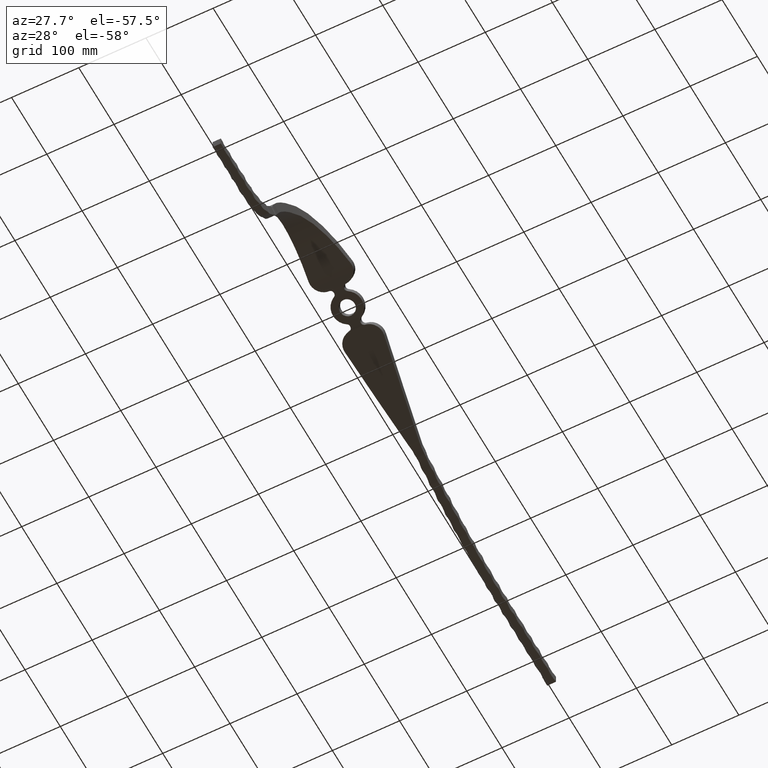
[diagram: clean part render]
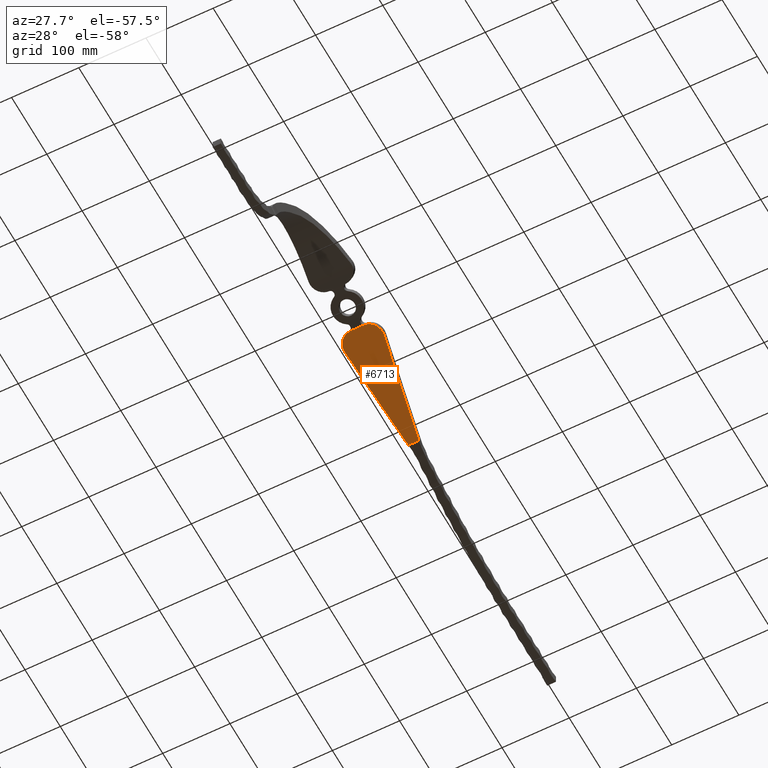
[diagram: same view with one face highlighted and labeled with its STEP entity id]
A machine part, auxiliary view. The second image highlights one B-rep face of the part: STEP entity #6713.
In plain terms, the highlighted face is a freeform B-spline surface patch.
Its self-contained STEP definition (entity closure, byte-faithful):
#177 = CARTESIAN_POINT ( 'NONE',  ( 32.49999999999999289, 398.2055284812243485, 98.91902307029602071 ) ) ;
#285 = VECTOR ( 'NONE', #12149, 1000.000000000000000 ) ;
#685 = CARTESIAN_POINT ( 'NONE',  ( 29.39842534981447031, 418.2966371080675003, 91.15992445113538167 ) ) ;
#833 = CARTESIAN_POINT ( 'NONE',  ( 21.56884418445620000, 402.0451591945417817, 97.43433253194005772 ) ) ;
#919 = CARTESIAN_POINT ( 'NONE',  ( 29.27533773561357222, 414.6042808549437382, 92.58321403811318362 ) ) ;
#983 = CARTESIAN_POINT ( 'NONE',  ( -26.08983782934221551, 406.5483346044427435, 95.69362923505715912 ) ) ;
#1789 = CARTESIAN_POINT ( 'NONE',  ( 6.499999999999996447, 568.0099615575538792, 37.66490534661281941 ) ) ;
#1950 = CARTESIAN_POINT ( 'NONE',  ( -32.50000000000000711, 398.2055284812243485, 98.91902307029602071 ) ) ;
#2468 = CARTESIAN_POINT ( 'NONE',  ( 29.45445679490124036, 417.0634536324353689, 91.63505440368849975 ) ) ;
#2619 = CARTESIAN_POINT ( 'NONE',  ( 28.93355376826901804, 412.7638882315812907, 93.29323224932920766 ) ) ;
#2663 = CARTESIAN_POINT ( 'NONE',  ( -7.891718761283561534, 558.8471700023734456, 40.73713867572663361 ) ) ;
#2976 = EDGE_LOOP ( 'NONE', ( #15078, #15892, #13282, #18932, #17515, #6330 ) ) ;
#3592 = CARTESIAN_POINT ( 'NONE',  ( 10.31337739668422593, 542.9026990181400834, 46.08076605695493555 ) ) ;
#3596 = LINE ( 'NONE', #14030, #285 ) ;
#4204 = CARTESIAN_POINT ( 'NONE',  ( 19.93934532058278108, 400.9877083774539983, 97.84319785511971190 ) ) ;
#4283 = CARTESIAN_POINT ( 'NONE',  ( 22.34838942786321780, 402.6312688367664805, 97.20772507863826206 ) ) ;
#4584 = CARTESIAN_POINT ( 'NONE',  ( -29.12372490940314407, 413.6964256004280287, 92.93342824950056524 ) ) ;
#4741 = CARTESIAN_POINT ( 'NONE',  ( -28.43479664211077562, 410.9733946164853364, 93.98429643560562852 ) ) ;
#5470 = CARTESIAN_POINT ( 'NONE',  ( -23.83320587916667321, 454.3373769139098499, 77.21319558653176784 ) ) ;
#5909 = CARTESIAN_POINT ( 'NONE',  ( 20.49506677604565752, 401.3203305310328233, 97.71458512468309721 ) ) ;
#6054 = CARTESIAN_POINT ( 'NONE',  ( 16.99461997797360269, 399.5873743733277479, 98.38467500652322428 ) ) ;
#6060 = CARTESIAN_POINT ( 'NONE',  ( -15.63067998978774575, 507.9176416998598711, 57.88500858344931288 ) ) ;
#6126 = CARTESIAN_POINT ( 'NONE',  ( 27.09725881263040748, 408.1469586631700395, 95.07595983321425592 ) ) ;
#6191 = CARTESIAN_POINT ( 'NONE',  ( -26.79096584835121675, 407.6104723255335784, 95.28322071068616594 ) ) ;
#6263 = CARTESIAN_POINT ( 'NONE',  ( -20.50217812889810176, 401.3246761432055223, 97.71290484822526423 ) ) ;
#6312 = EDGE_CURVE ( 'NONE', #8729, #12713, #14352, .T. ) ;
#6315 = CARTESIAN_POINT ( 'NONE',  ( 7.891718761283565975, 558.8471700023733320, 40.73713867572664782 ) ) ;
#6330 = ORIENTED_EDGE ( 'NONE', *, *, #13115, .F. ) ;
#6344 = CARTESIAN_POINT ( 'NONE',  ( -14.48277634946172654, 398.7721352429575177, 98.69991959481244237 ) ) ;
#6420 = CARTESIAN_POINT ( 'NONE',  ( -28.92939772842571600, 412.7816145809468367, 93.28640556615503954 ) ) ;
#6713 = ADVANCED_FACE ( 'NONE', ( #13249 ), #23262, .T. ) ;
#7288 = B_SPLINE_CURVE_WITH_KNOTS ( 'NONE', 3,
 ( #16649, #18388, #6060, #15081, #22012, #22088 ),
 .UNSPECIFIED., .F., .F.,
 ( 4, 1, 1, 4 ),
 ( 0.05352686660307579003, 0.4399986132098092639, 0.5600013864694951549, 0.8733713709599107977 ),
 .UNSPECIFIED. ) ;
#7913 = CARTESIAN_POINT ( 'NONE',  ( 29.20761037884696165, 419.5331693987598101, 90.68387095057711633 ) ) ;
#7974 = CARTESIAN_POINT ( 'NONE',  ( -29.06457868797799549, 413.3912785144970030, 93.05115806425040148 ) ) ;
#8138 = CARTESIAN_POINT ( 'NONE',  ( -22.10934486025479728, 402.4351248500546490, 97.28355683353093752 ) ) ;
#8217 = CARTESIAN_POINT ( 'NONE',  ( 7.891718761283565975, 558.8471700023733320, 40.73713867572664782 ) ) ;
#8221 = CARTESIAN_POINT ( 'NONE',  ( -17.00526975098604510, 399.5915031162260220, 98.38307847779570636 ) ) ;
#8729 = VERTEX_POINT ( 'NONE', #8217 ) ;
#9246 = B_SPLINE_CURVE_WITH_KNOTS ( 'NONE', 3,
 ( #7913, #685, #2468, #18452, #919, #20352, #2619, #18605, #18689, #15155, #6126, #20265, #22083, #15006, #13124, #14846, #11531, #4283, #14928, #833, #18757, #5909, #4204, #20493, #13277, #6054, #20419, #9640, #9559, #22228 ),
 .UNSPECIFIED., .F., .F.,
 ( 4, 2, 2, 2, 2, 2, 2, 2, 2, 2, 2, 2, 2, 2, 4 ),
 ( 0.000000000000000000, 0.003959031758025944106, 0.005938547637038922231, 0.007918063516051902090, 0.01187709527407785834, 0.01286685321358445495, 0.01385661115309104983, 0.01583612703210410602, 0.01979515879013008309, 0.02078491672963658776, 0.02177467466914308550, 0.02375419054815599423, 0.02573370642716890297, 0.02771322230618181170, 0.03167225406420762918 ),
 .UNSPECIFIED. ) ;
#9546 = CARTESIAN_POINT ( 'NONE',  ( -11.88259121125724249, 398.3483567640017213, 98.86379228869786573 ) ) ;
#9559 = CARTESIAN_POINT ( 'NONE',  ( 13.19130097400653590, 398.5003162210454093, 98.80503054827420328 ) ) ;
#9640 = CARTESIAN_POINT ( 'NONE',  ( 14.47658269986813906, 398.7710083030967780, 98.70035538160064448 ) ) ;
#9931 = CARTESIAN_POINT ( 'NONE',  ( -29.34510225823500562, 415.2249399242810455, 92.34385613567762618 ) ) ;
#9978 = CARTESIAN_POINT ( 'NONE',  ( 26.49170503800791465, 437.1329658685171466, 83.90811201439022682 ) ) ;
#10089 = CARTESIAN_POINT ( 'NONE',  ( -23.60785301854856755, 403.6630025452207633, 96.80884337217911195 ) ) ;
#10130 = CARTESIAN_POINT ( 'NONE',  ( 15.63067998978774931, 507.9176416998598711, 57.88500858344931288 ) ) ;
#10215 = CARTESIAN_POINT ( 'NONE',  ( 22.73579003989179625, 461.5058798898992336, 74.62727768176603149 ) ) ;
#10310 = CARTESIAN_POINT ( 'NONE',  ( 11.88259121125725670, 398.3483567640017213, 98.86379228869786573 ) ) ;
#10774 = CARTESIAN_POINT ( 'NONE',  ( -6.500000000000000000, 568.0099615575538792, 37.66490534661281941 ) ) ;
#11347 = CARTESIAN_POINT ( 'NONE',  ( 7.891718761283565975, 558.8471700023733320, 40.73713867572664782 ) ) ;
#11366 = CARTESIAN_POINT ( 'NONE',  ( -13.19357904856109265, 398.5005807372755839, 98.80492826155681030 ) ) ;
#11531 = CARTESIAN_POINT ( 'NONE',  ( 23.60247371925472848, 403.6575368899456748, 96.81095624143486589 ) ) ;
#11560 = EDGE_CURVE ( 'NONE', #12322, #22027, #9246, .T. ) ;
#11682 = CARTESIAN_POINT ( 'NONE',  ( -25.71223129148085462, 406.0360309347760221, 95.89161065220696401 ) ) ;
#11761 = CARTESIAN_POINT ( 'NONE',  ( -29.20761037884699363, 419.5331693987596395, 90.68387095057714475 ) ) ;
#11807 = CARTESIAN_POINT ( 'NONE',  ( -11.88259121125724249, 398.3483567640017213, 98.86379228869786573 ) ) ;
#11810 = CARTESIAN_POINT ( 'NONE',  ( 11.24118810654761269, 536.7962948915039760, 48.13500635904080838 ) ) ;
#11837 = CARTESIAN_POINT ( 'NONE',  ( -18.80128734857670736, 400.3780375966611018, 98.07893963265303228 ) ) ;
#11924 = CARTESIAN_POINT ( 'NONE',  ( -19.94574764309540882, 400.9914019890550776, 97.84176966368903550 ) ) ;
#12149 = DIRECTION ( 'NONE',  ( 1.000000000000000000, -0.000000000000000000, -0.000000000000000000 ) ) ;
#12322 = VERTEX_POINT ( 'NONE', #15992 ) ;
#12332 = EDGE_CURVE ( 'NONE', #13900, #22027, #3596, .T. ) ;
#12663 = EDGE_CURVE ( 'NONE', #8729, #12322, #12707, .T. ) ;
#12671 = CARTESIAN_POINT ( 'NONE',  ( 15.16679412383265912, 510.9478214107848544, 56.79192178479907938 ) ) ;
#12707 = B_SPLINE_CURVE_WITH_KNOTS ( 'NONE', 3,
 ( #6315, #11810, #10130, #10215, #9978, #19021 ),
 .UNSPECIFIED., .F., .F.,
 ( 4, 1, 1, 4 ),
 ( 0.05352686660307591493, 0.4399986132098092084, 0.5600013864694951549, 0.8733713709599096875 ),
 .UNSPECIFIED. ) ;
#12713 = VERTEX_POINT ( 'NONE', #22578 ) ;
#13115 = EDGE_CURVE ( 'NONE', #12713, #16101, #7288, .T. ) ;
#13124 = CARTESIAN_POINT ( 'NONE',  ( 25.70620652994326960, 406.0282035704236705, 95.89463568307303376 ) ) ;
#13249 = FACE_OUTER_BOUND ( 'NONE', #2976, .T. ) ;
#13277 = CARTESIAN_POINT ( 'NONE',  ( 18.20597848382261930, 400.0945659271669115, 98.18855235337194642 ) ) ;
#13282 = ORIENTED_EDGE ( 'NONE', *, *, #11560, .T. ) ;
#13334 = CARTESIAN_POINT ( 'NONE',  ( -27.11021137979464157, 408.1535681194464473, 95.07339726681945535 ) ) ;
#13493 = CARTESIAN_POINT ( 'NONE',  ( -27.97710778497611983, 409.8177505615064433, 94.43055625076434012 ) ) ;
#13900 = VERTEX_POINT ( 'NONE', #11807 ) ;
#14030 = CARTESIAN_POINT ( 'NONE',  ( -33.03490780949557148, 398.3483567640017213, 98.86379228869786573 ) ) ;
#14352 = B_SPLINE_CURVE_WITH_KNOTS ( 'NONE', 1,
 ( #11347, #2663 ),
 .UNSPECIFIED., .F., .F.,
 ( 2, 2 ),
 ( 0.000000000000000000, 0.01578343752256712931 ),
 .UNSPECIFIED. ) ;
#14746 = EDGE_CURVE ( 'NONE', #13900, #16101, #16493, .T. ) ;
#14846 = CARTESIAN_POINT ( 'NONE',  ( 24.50347282880098021, 404.5589890287100161, 96.46247556991565375 ) ) ;
#14928 = CARTESIAN_POINT ( 'NONE',  ( 22.09091947164966641, 402.4310077467441147, 97.28515087008932483 ) ) ;
#15006 = CARTESIAN_POINT ( 'NONE',  ( 26.08213936598827587, 406.5375928424065819, 95.69778027045897772 ) ) ;
#15078 = ORIENTED_EDGE ( 'NONE', *, *, #6312, .F. ) ;
#15081 = CARTESIAN_POINT ( 'NONE',  ( -22.73579003989181757, 461.5058798898991768, 74.62727768176605991 ) ) ;
#15155 = CARTESIAN_POINT ( 'NONE',  ( 27.24989687108310221, 408.4220799058439297, 94.96967661893555146 ) ) ;
#15369 = CARTESIAN_POINT ( 'NONE',  ( -21.58282356567911364, 402.0454475186368200, 97.43421985644476990 ) ) ;
#15892 = ORIENTED_EDGE ( 'NONE', *, *, #12663, .T. ) ;
#15992 = CARTESIAN_POINT ( 'NONE',  ( 29.20761037884696165, 419.5331693987598101, 90.68387095057711633 ) ) ;
#16101 = VERTEX_POINT ( 'NONE', #20182 ) ;
#16206 = CARTESIAN_POINT ( 'NONE',  ( -10.31337739668422948, 542.9026990181400834, 46.08076605695493555 ) ) ;
#16352 = CARTESIAN_POINT ( 'NONE',  ( 23.83320587916666611, 454.3373769139098499, 77.21319558653176784 ) ) ;
#16493 = B_SPLINE_CURVE_WITH_KNOTS ( 'NONE', 3,
 ( #9546, #11366, #6344, #18744, #8221, #18901, #11837, #11924, #6263, #15369, #8138, #10089, #18980, #11682, #983, #6191, #13334, #13493, #4741, #20711, #6420, #7974, #4584, #17252, #9931, #20792, #22524, #11761 ),
 .UNSPECIFIED., .F., .F.,
 ( 4, 2, 2, 2, 2, 2, 2, 2, 2, 2, 2, 2, 2, 4 ),
 ( 0.002460286752174431144, 0.006419626626290896206, 0.008399296563349130038, 0.01037896650040736474, 0.01235863643746559770, 0.01433830637452383240, 0.01829764624864030353, 0.02027731618569852956, 0.02225698612275676253, 0.02621632599687336029, 0.02720616096540254963, 0.02819599593393173204, 0.03017566587098997194, 0.03413500574510629215 ),
 .UNSPECIFIED. ) ;
#16649 = CARTESIAN_POINT ( 'NONE',  ( -7.891718761283561534, 558.8471700023734456, 40.73713867572663361 ) ) ;
#17252 = CARTESIAN_POINT ( 'NONE',  ( -29.27635896460176568, 414.6127938923592069, 92.57993084483788948 ) ) ;
#17515 = ORIENTED_EDGE ( 'NONE', *, *, #14746, .T. ) ;
#17996 = CARTESIAN_POINT ( 'NONE',  ( 28.68662260430193101, 422.9034639585898958, 89.36848907497022765 ) ) ;
#18388 = CARTESIAN_POINT ( 'NONE',  ( -11.24118810654761091, 536.7962948915040897, 48.13500635904079417 ) ) ;
#18452 = CARTESIAN_POINT ( 'NONE',  ( 29.34454661716025825, 415.2184706027821335, 92.34635064269232885 ) ) ;
#18605 = CARTESIAN_POINT ( 'NONE',  ( 28.43190402496946589, 410.9661877161350390, 93.98707949360566261 ) ) ;
#18689 = CARTESIAN_POINT ( 'NONE',  ( 27.97451454800989268, 409.8113695045763052, 94.43302040004398634 ) ) ;
#18744 = CARTESIAN_POINT ( 'NONE',  ( -16.38280581472843878, 399.3643818633516958, 98.47090365852871230 ) ) ;
#18757 = CARTESIAN_POINT ( 'NONE',  ( 21.30354368575481061, 401.8589786542387401, 97.50631769082038147 ) ) ;
#18901 = CARTESIAN_POINT ( 'NONE',  ( -18.21325683103205506, 400.0979485631513057, 98.18724435528643824 ) ) ;
#18932 = ORIENTED_EDGE ( 'NONE', *, *, #12332, .F. ) ;
#18980 = CARTESIAN_POINT ( 'NONE',  ( -24.50805168869574047, 404.5636565303972816, 96.46067125291644118 ) ) ;
#19021 = CARTESIAN_POINT ( 'NONE',  ( 29.20761037884696165, 419.5331693987598101, 90.68387095057711633 ) ) ;
#19821 = CARTESIAN_POINT ( 'NONE',  ( -28.68662260430194522, 422.9034639585898958, 89.36848907497021344 ) ) ;
#20182 = CARTESIAN_POINT ( 'NONE',  ( -29.20761037884699363, 419.5331693987596395, 90.68387095057714475 ) ) ;
#20265 = CARTESIAN_POINT ( 'NONE',  ( 26.77628481052703791, 407.6022839752187679, 95.28639128331155916 ) ) ;
#20352 = CARTESIAN_POINT ( 'NONE',  ( 29.07020653708266522, 413.3775424961971794, 93.05644111036211541 ) ) ;
#20419 = CARTESIAN_POINT ( 'NONE',  ( 16.36849903010842056, 399.3595260797973197, 98.47278133716457660 ) ) ;
#20493 = CARTESIAN_POINT ( 'NONE',  ( 18.79480088066210186, 400.3748265347933852, 98.08018127557926391 ) ) ;
#20711 = CARTESIAN_POINT ( 'NONE',  ( -28.85327312093180296, 412.4770052797947528, 93.40395904387321480 ) ) ;
#20792 = CARTESIAN_POINT ( 'NONE',  ( -29.45420746659642930, 417.0650179087599554, 91.63445211239486810 ) ) ;
#21709 = CARTESIAN_POINT ( 'NONE',  ( -15.16679412383266445, 510.9478214107848544, 56.79192178479907938 ) ) ;
#22012 = CARTESIAN_POINT ( 'NONE',  ( -26.49170503800794663, 437.1329658685170330, 83.90811201439026945 ) ) ;
#22027 = VERTEX_POINT ( 'NONE', #10310 ) ;
#22083 = CARTESIAN_POINT ( 'NONE',  ( 26.60745879732511909, 407.3320331713703695, 95.39080899955716575 ) ) ;
#22088 = CARTESIAN_POINT ( 'NONE',  ( -29.20761037884699363, 419.5331693987596395, 90.68387095057714475 ) ) ;
#22228 = CARTESIAN_POINT ( 'NONE',  ( 11.88259121125725670, 398.3483567640017213, 98.86379228869786573 ) ) ;
#22524 = CARTESIAN_POINT ( 'NONE',  ( -29.39843829794753560, 418.2965532006855938, 91.15995675470173865 ) ) ;
#22578 = CARTESIAN_POINT ( 'NONE',  ( -7.891718761283561534, 558.8471700023734456, 40.73713867572663361 ) ) ;
#23262 = B_SPLINE_SURFACE_WITH_KNOTS ( 'NONE', 1, 3, ( 
 ( #10774, #16206, #21709, #5470, #19821, #1950 ),
 ( #1789, #3592, #12671, #16352, #17996, #177 ) ),
 .UNSPECIFIED., .F., .F., .F.,
 ( 2, 2 ),
 ( 4, 1, 1, 4 ),
 ( 0.000000000000000000, 1.000000000000000000 ),
 ( 0.000000000000000000, 0.4399986132098092084, 0.5600013864694951549, 1.000000000000000000 ),
 .UNSPECIFIED. ) ;